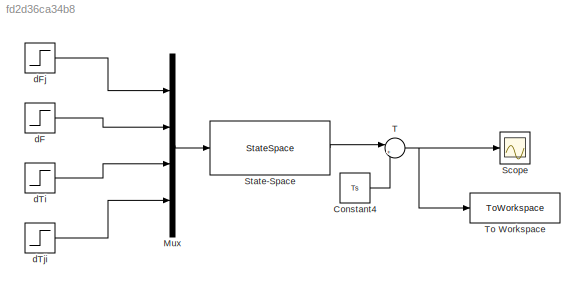
MODEL slx_fd2d36ca34b8
KIND model
CONFIG AbsTol = auto
CONFIG EnableMultiTasking = off
CONFIG FixedStep = 5
CONFIG MaxStep = auto
CONFIG MinStep = auto
CONFIG RelTol = 1e-3
CONFIG SampleTimeConstraint = Unconstrained
CONFIG SolverName = FixedStepAuto
CONFIG StartTime = 0.0
CONFIG StopTime = 1800
BLOCK [Sum]             T
  Inputs = |++
  NameLocation = top
  Ports = [2, 1]
BLOCK [Constant] Constant4
  Value = Ts
BLOCK [Mux] Mux
  DisplayOption = bar
  Ports = [4, 1]
BLOCK [Scope] Scope
  Floating = off
  NumInputPorts = 1
  Ports = [1]
  ScopeSpecificationString = Simulink.scopes.TimeScopeBlockCfg('CurrentConfiguration', extmgr.ConfigurationSet(extmgr.Configuration('Core','General UI',true),extmgr.Configuration('Core','Source UI',true),extmgr.Configuration('Sources','WiredSimulink',true),extmgr.Configuration('Visuals','Time Domain',true,'SerializedDisplays',{struct('MinYLimReal','51.55467','MaxYLimReal','52.70793','YLabelReal','','MinYLimMag','51.55467','Ma...<+1368ch>
BLOCK [StateSpace] State-Space
  A = A
  B = B
  C = C
  D = D
  InitialCondition = 0
  Ports = [1, 1]
BLOCK [ToWorkspace] To Workspace
  FixptAsFi = on
  MaxDataPoints = inf
  Ports = [1]
  SampleTime = -1
  SaveFormat = Timeseries
  VariableName = T_Linear
BLOCK [Step] dF
  After = 0
  SampleTime = 0
  Time = 0
BLOCK [Step] dFj
  After = 4.72e-5
  SampleTime = 0
  Time = 0
BLOCK [Step] dTi
  After = 0
  SampleTime = 0
  Time = 0
BLOCK [Step] dTji
  After = 0
  SampleTime = 0
  Time = 0
NET             T:1 -> Scope:1, To Workspace:1
LINE Constant4:1 ->             T:2
LINE Mux:1 -> State-Space:1
LINE State-Space:1 ->             T:1
LINE dF:1 -> Mux:2
LINE dFj:1 -> Mux:1
LINE dTi:1 -> Mux:3
LINE dTji:1 -> Mux:4
note: NET lines group one-source signal fan-out (src -> all destinations, sorted); 1:1 wires keep LINE
